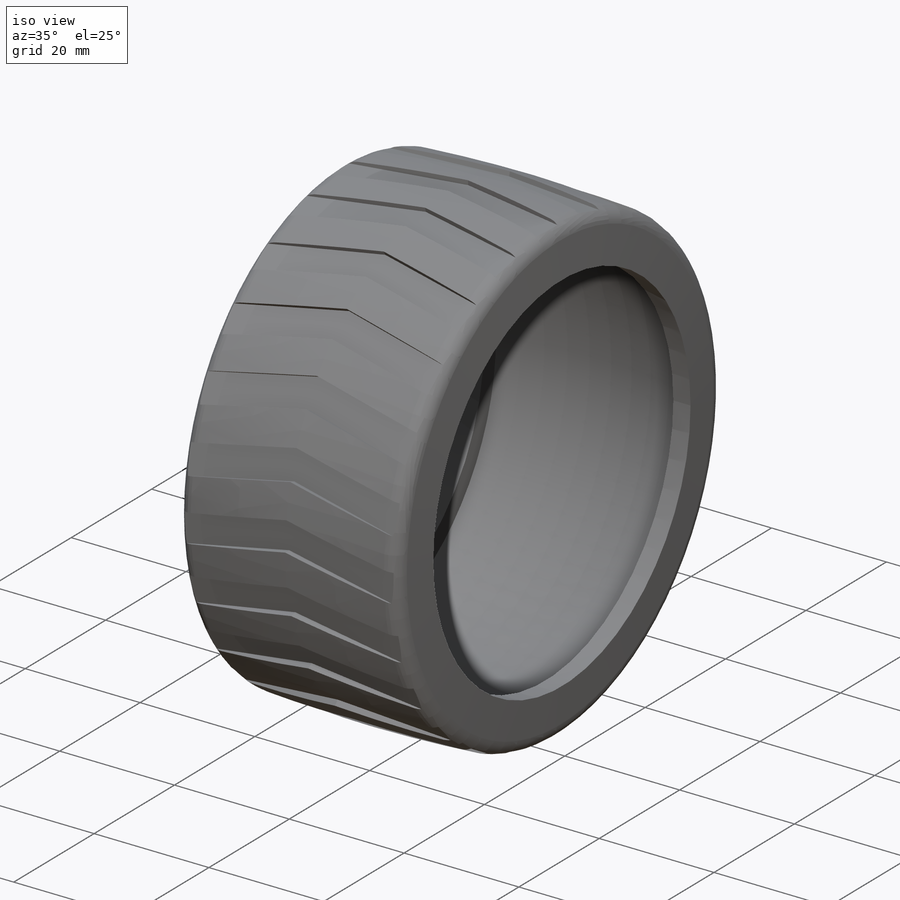
[diagram: iso view]
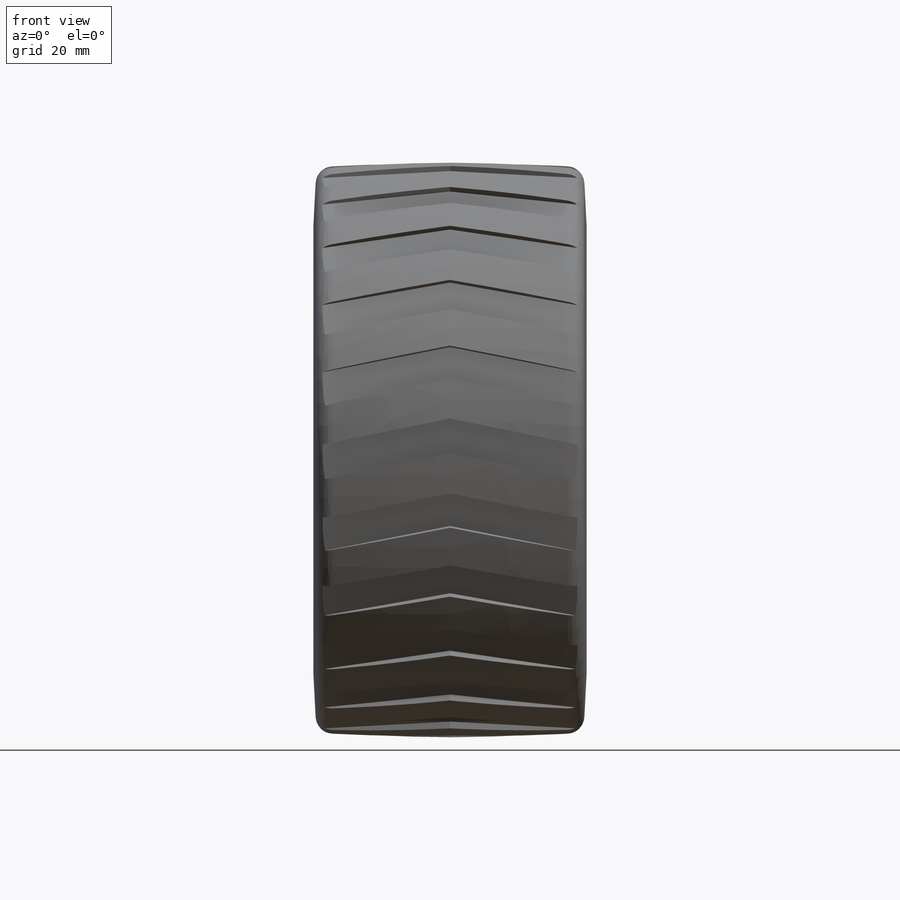
[diagram: front view]
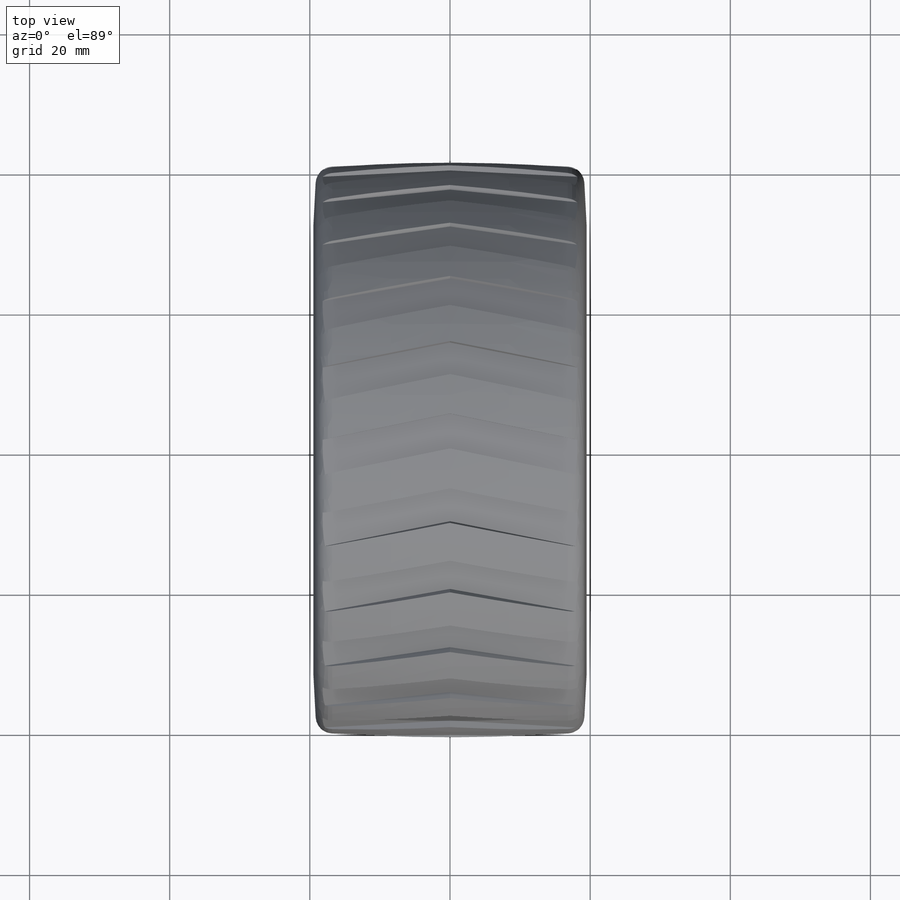
[diagram: top view]
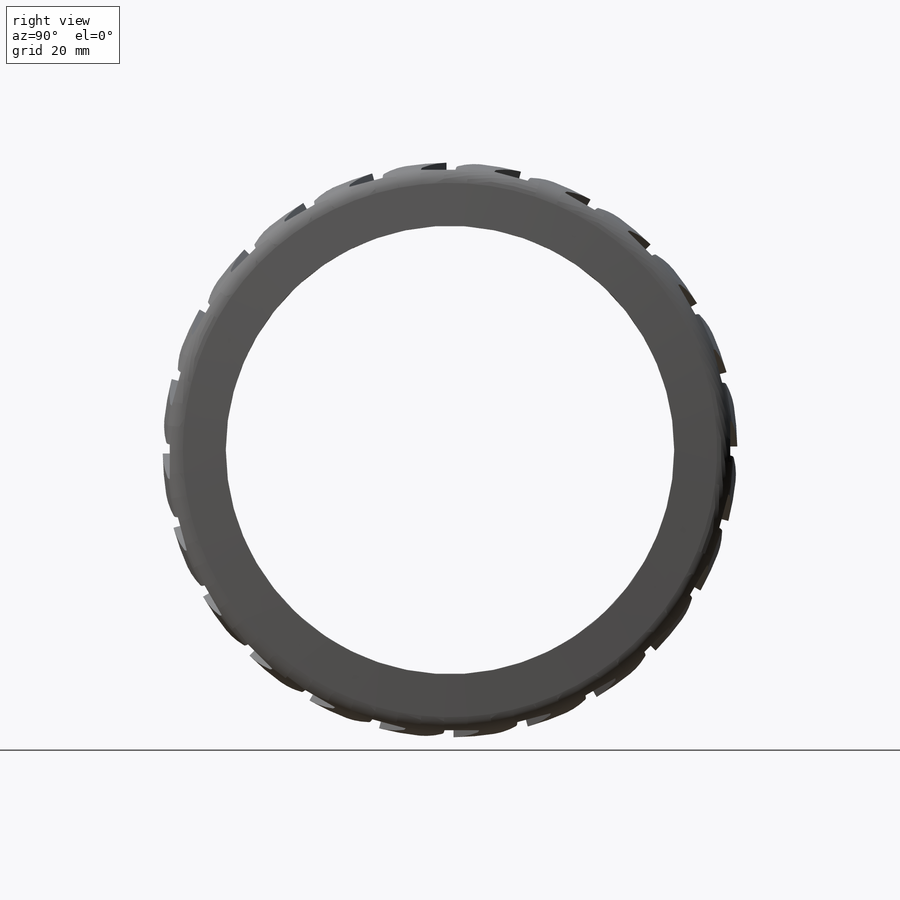
[diagram: right view]
SOLIDWORKS PART (.sldprt)
format: sldprt  version: not decoded by parser v0  size: 542,720 bytes
history: native  units: mm
features: plane x4, sketch x3, material x1, revolve x1, cut_extrude x1, pattern_circular x1, cut_revolve x1 (+9 scaffold rows collapsed)
feature tree (21):
  scaffold x9  (default folders/planes/origin — collapsed)
  material  "Material <nicht festgelegt>"
  plane  "Ebene vorne"
  plane  "Ebene oben"
  plane  "Ebene rechts"
  sketch  "Skizze2"  dims[c1.D2=~36.714446mm c1.D1=70.0mm c2.D2=75.0mm c2.D3=33.0mm c2.D4=3.0mm c2.D5=80.0mm c2.D6=3.0mm c3.D5=1.0mm c3.D7=80.0mm c4.D5=82.0mm]
  revolve  "Rotation1"  Angle=360deg
  plane  "Ebene1"  Offset=41mm
  sketch  "Skizze3"  dims[D1=5.0mm D2=9.0mm]
  cut_extrude  "Schnitt-Linear austragen2"  Depth=1mm
  pattern_circular  "Kreismuster6"  Count=24  [1 undecoded]
  sketch  "Skizze4"  dims[c1.D2=2.5mm c1.D5=2.5mm c1.D1=0.5mm c1.D3=1.0mm c1.D4=1.0mm c2.D3=1.0mm c2.D5=~1.892051mm c3.D5=~1.892051mm c3.D2=~5.706274mm]
  cut_revolve  "Schnitt-Rotation5"  [1 undecoded]
decode coverage: 6 of 7 modeling features carry decoded parameters
note: ~ marks probable driven/reference dimensions
note: 2 parameter values undecoded
note: suppression state not decoded; provenance and decode notes live in map.json
